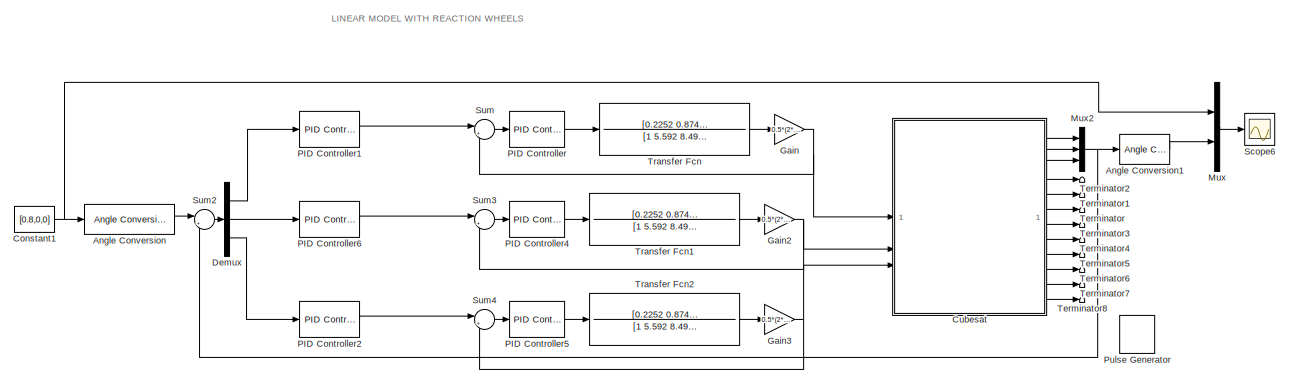
[diagram: root canvas - part 1/2, full width, top band]
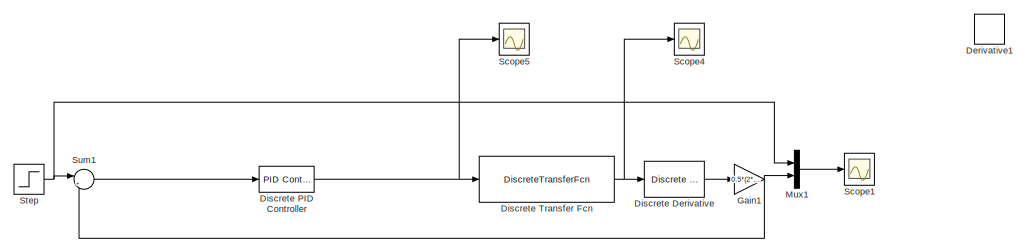
[diagram: root canvas - part 2/2, bottom right region]
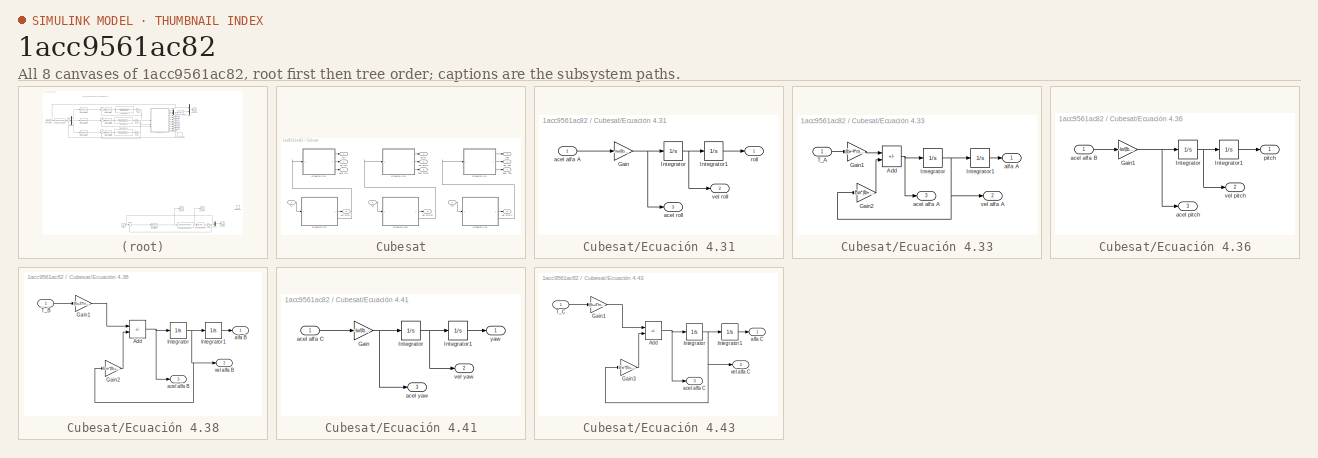
[diagram: thumbnail index - all 8 canvases of the model, root first then tree order]
MODEL slx_1acc9561ac82
KIND model
CONFIG AbsTol = auto
CONFIG EnableMultiTasking = off
CONFIG FixedStep = 0.00005
CONFIG MaxStep = auto
CONFIG MinStep = auto
CONFIG RelTol = 1e-3
CONFIG SampleTimeConstraint = Unconstrained
CONFIG SolverName = FixedStepAuto
CONFIG StartTime = 0.0
CONFIG StopTime = 100
BLOCK [Reference] Angle Conversion  REF=aerolibconvert2/Angle Conversion
  SourceBlock = aerolibconvert2/Angle Conversion
  SourceType = Angle Conversion
BLOCK [Reference] Angle Conversion1  REF=aerolibconvert2/Angle Conversion
  NameLocation = right
  SourceBlock = aerolibconvert2/Angle Conversion
  SourceType = Angle Conversion
BLOCK [Constant] Constant1
  Value = [0.8,0,0]
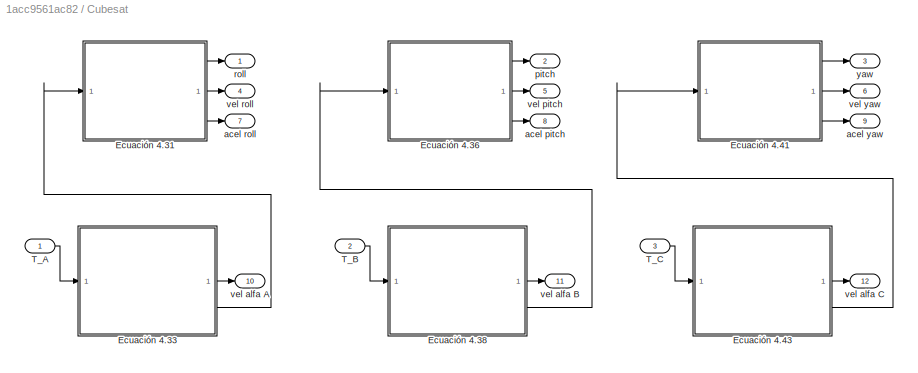
BLOCK [SubSystem] Cubesat
BLOCK [SubSystem] Cubesat/Ecuación 4.31
BLOCK [Gain] Cubesat/Ecuación 4.31/Gain
  Gain = -Iw/(Ib+4*mw*(lw)^2+Iw)
BLOCK [Integrator] Cubesat/Ecuación 4.31/Integrator
BLOCK [Integrator] Cubesat/Ecuación 4.31/Integrator1
BLOCK [Inport] Cubesat/Ecuación 4.31/acel alfa A
BLOCK [Outport] Cubesat/Ecuación 4.31/acel roll
  Port = 3
BLOCK [Outport] Cubesat/Ecuación 4.31/roll
BLOCK [Outport] Cubesat/Ecuación 4.31/vel roll
  Port = 2
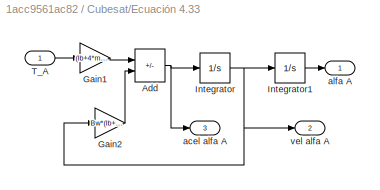
BLOCK [SubSystem] Cubesat/Ecuación 4.33
BLOCK [Sum] Cubesat/Ecuación 4.33/Add
  IconShape = rectangular
  Inputs = +-
BLOCK [Gain] Cubesat/Ecuación 4.33/Gain1
  Gain = (Ib+4*mw*(lw)^2+Iw)/(Iw*(Ib+4*mw*(lw)^2))
BLOCK [Gain] Cubesat/Ecuación 4.33/Gain2
  Gain = Bw*(Ib+4*mw*(lw)^2+Iw)/(Iw*(Ib+4*mw*(lw)^2))
BLOCK [Integrator] Cubesat/Ecuación 4.33/Integrator
BLOCK [Integrator] Cubesat/Ecuación 4.33/Integrator1
BLOCK [Inport] Cubesat/Ecuación 4.33/T_A
BLOCK [Outport] Cubesat/Ecuación 4.33/acel alfa A
  Port = 3
BLOCK [Outport] Cubesat/Ecuación 4.33/alfa A
BLOCK [Outport] Cubesat/Ecuación 4.33/vel alfa A
  Port = 2
BLOCK [SubSystem] Cubesat/Ecuación 4.36
BLOCK [Gain] Cubesat/Ecuación 4.36/Gain1
  Gain = -Iw/(Ib+4*mw*(lw)^2+Iw)
BLOCK [Integrator] Cubesat/Ecuación 4.36/Integrator
BLOCK [Integrator] Cubesat/Ecuación 4.36/Integrator1
BLOCK [Inport] Cubesat/Ecuación 4.36/acel alfa B
BLOCK [Outport] Cubesat/Ecuación 4.36/acel pitch
  Port = 3
BLOCK [Outport] Cubesat/Ecuación 4.36/pitch
BLOCK [Outport] Cubesat/Ecuación 4.36/vel pitch
  Port = 2
BLOCK [SubSystem] Cubesat/Ecuación 4.38
BLOCK [Sum] Cubesat/Ecuación 4.38/Add
  IconShape = rectangular
  Inputs = +-
BLOCK [Gain] Cubesat/Ecuación 4.38/Gain1
  Gain = (Ib+4*mw*(lw)^2+Iw)/(Iw*(Ib+4*mw*(lw)^2))
BLOCK [Gain] Cubesat/Ecuación 4.38/Gain2
  Gain = Bw*(Ib+4*mw*(lw)^2+Iw)/(Iw*(Ib+4*mw*(lw)^2))
BLOCK [Integrator] Cubesat/Ecuación 4.38/Integrator
BLOCK [Integrator] Cubesat/Ecuación 4.38/Integrator1
BLOCK [Inport] Cubesat/Ecuación 4.38/T_B
BLOCK [Outport] Cubesat/Ecuación 4.38/acel alfa B
  Port = 3
BLOCK [Outport] Cubesat/Ecuación 4.38/alfa B
BLOCK [Outport] Cubesat/Ecuación 4.38/vel alfa B
  Port = 2
BLOCK [SubSystem] Cubesat/Ecuación 4.41
BLOCK [Gain] Cubesat/Ecuación 4.41/Gain
  Gain = -Iw/(Ib+4*mw*(lw)^2+Iw)
BLOCK [Integrator] Cubesat/Ecuación 4.41/Integrator
BLOCK [Integrator] Cubesat/Ecuación 4.41/Integrator1
BLOCK [Inport] Cubesat/Ecuación 4.41/acel alfa C
BLOCK [Outport] Cubesat/Ecuación 4.41/acel yaw
  Port = 3
BLOCK [Outport] Cubesat/Ecuación 4.41/vel yaw
  Port = 2
BLOCK [Outport] Cubesat/Ecuación 4.41/yaw
BLOCK [SubSystem] Cubesat/Ecuación 4.43
BLOCK [Sum] Cubesat/Ecuación 4.43/Add
  IconShape = rectangular
  Inputs = +-
BLOCK [Gain] Cubesat/Ecuación 4.43/Gain1
  Gain = (Ib+4*mw*(lw)^2+Iw)/(Iw*(Ib+4*mw*(lw)^2))
BLOCK [Gain] Cubesat/Ecuación 4.43/Gain3
  Gain = Bw*(Ib+4*mw*(lw)^2+Iw)/(Iw*(Ib+4*mw*(lw)^2))
BLOCK [Integrator] Cubesat/Ecuación 4.43/Integrator
BLOCK [Integrator] Cubesat/Ecuación 4.43/Integrator1
BLOCK [Inport] Cubesat/Ecuación 4.43/T_C
BLOCK [Outport] Cubesat/Ecuación 4.43/acel alfa C
  Port = 3
BLOCK [Outport] Cubesat/Ecuación 4.43/alfa C
BLOCK [Outport] Cubesat/Ecuación 4.43/vel alfa C
  Port = 2
BLOCK [Inport] Cubesat/T_A
BLOCK [Inport] Cubesat/T_B
  Port = 2
BLOCK [Inport] Cubesat/T_C
  Port = 3
BLOCK [Outport] Cubesat/acel pitch
  Port = 8
BLOCK [Outport] Cubesat/acel roll
  Port = 7
BLOCK [Outport] Cubesat/acel yaw
  Port = 9
BLOCK [Outport] Cubesat/pitch
  Port = 2
BLOCK [Outport] Cubesat/roll
BLOCK [Outport] Cubesat/vel alfa A
  Port = 10
BLOCK [Outport] Cubesat/vel alfa B
  Port = 11
BLOCK [Outport] Cubesat/vel alfa C
  Port = 12
BLOCK [Outport] Cubesat/vel pitch
  Port = 5
BLOCK [Outport] Cubesat/vel roll
  Port = 4
BLOCK [Outport] Cubesat/vel yaw
  Port = 6
BLOCK [Outport] Cubesat/yaw
  Port = 3
BLOCK [Demux] Demux
  Outputs = 3
BLOCK [Derivative] Derivative1
  Commented = on
BLOCK [Reference] Discrete Derivative  REF=simulink/Discrete/Discrete Derivative
  Commented = on
  SourceBlock = simulink/Discrete/Discrete Derivative
  SourceType = Discrete Derivative
BLOCK [Reference] Discrete PID Controller  REF=slpidlib/PID Controller
  Commented = on
  SourceBlock = slpidlib/PID Controller
  SourceType = PID 1dof
BLOCK [DiscreteTransferFcn] Discrete Transfer Fcn
  Commented = on
  Denominator = [1 -1.128 0.3268]
  InputPortMap = u0
  Numerator = [0.03776 -0.01728]
BLOCK [Gain] Gain
  Gain = 0.5*(2*10^(-2))^2*4.7*10^(-3)
BLOCK [Gain] Gain1
  Commented = on
  Gain = 0.5*(2*10^(-2))^2*2.5*10^(-3)
BLOCK [Gain] Gain2
  Gain = 0.5*(2*10^(-2))^2*4.7*10^(-3)
BLOCK [Gain] Gain3
  Gain = 0.5*(2*10^(-2))^2*4.7*10^(-3)
BLOCK [Mux] Mux
  DisplayOption = bar
  Inputs = 2
BLOCK [Mux] Mux1
  Commented = on
  DisplayOption = bar
  Inputs = 2
BLOCK [Mux] Mux2
  DisplayOption = bar
  Inputs = 3
BLOCK [Reference] PID Controller  REF=slpidlib/PID Controller
  SourceBlock = slpidlib/PID Controller
  SourceType = PID 1dof
BLOCK [Reference] PID Controller1  REF=slpidlib/PID Controller
  SourceBlock = slpidlib/PID Controller
  SourceType = PID 1dof
BLOCK [Reference] PID Controller2  REF=slpidlib/PID Controller
  SourceBlock = slpidlib/PID Controller
  SourceType = PID 1dof
BLOCK [Reference] PID Controller4  REF=slpidlib/PID Controller
  SourceBlock = slpidlib/PID Controller
  SourceType = PID 1dof
BLOCK [Reference] PID Controller5  REF=slpidlib/PID Controller
  SourceBlock = slpidlib/PID Controller
  SourceType = PID 1dof
BLOCK [Reference] PID Controller6  REF=slpidlib/PID Controller
  SourceBlock = slpidlib/PID Controller
  SourceType = PID 1dof
BLOCK [DiscretePulseGenerator] Pulse Generator
  Amplitude = 1*10^(-4)
  Commented = on
  Period = 7
  PulseType = Time based
  PulseWidth = 50
BLOCK [Scope] Scope1
  Commented = on
  Floating = off
  NumInputPorts = 1
  ScopeSpecificationString = Simulink.scopes.TimeScopeBlockCfg('CurrentConfiguration', extmgr.ConfigurationSet(extmgr.Configuration('Core','General UI',true),extmgr.Configuration('Core','Source UI',true),extmgr.Configuration('Sources','WiredSimulink',true,'DataLoggingVariableName','ScopeData1'),extmgr.Configuration('Visuals','Time Domain',true,'SerializedDisplays',{struct('MinYLimReal','-0.00001','MaxYLimReal','0.00011','YLab...<+1686ch>
BLOCK [Scope] Scope4
  Commented = on
  Floating = off
  NumInputPorts = 1
  ScopeSpecificationString = Simulink.scopes.TimeScopeBlockCfg('CurrentConfiguration', extmgr.ConfigurationSet(extmgr.Configuration('Core','General UI',true),extmgr.Configuration('Core','Source UI',true),extmgr.Configuration('Sources','WiredSimulink',true,'DataLoggingVariableName','ScopeData4'),extmgr.Configuration('Visuals','Time Domain',true,'SerializedDisplays',{struct('MinYLimReal','-64.37401','MaxYLimReal','579.36609','Y...<+1396ch>
BLOCK [Scope] Scope5
  Commented = on
  Floating = off
  NumInputPorts = 1
  ScopeSpecificationString = Simulink.scopes.TimeScopeBlockCfg('CurrentConfiguration', extmgr.ConfigurationSet(extmgr.Configuration('Core','General UI',true),extmgr.Configuration('Core','Source UI',true),extmgr.Configuration('Sources','WiredSimulink',true,'DataLoggingVariableName','ScopeData5'),extmgr.Configuration('Visuals','Time Domain',true,'SerializedDisplays',{struct('MinYLimReal','-624.875','MaxYLimReal','5623.875','YLa...<+1392ch>
BLOCK [Scope] Scope6
  Floating = off
  NumInputPorts = 1
  ScopeSpecificationString = Simulink.scopes.TimeScopeBlockCfg('CurrentConfiguration', extmgr.ConfigurationSet(extmgr.Configuration('Core','General UI',true),extmgr.Configuration('Core','Source UI',true),extmgr.Configuration('Sources','WiredSimulink',true,'DataLogging',true,'DataLoggingVariableName','ScopeData1'),extmgr.Configuration('Visuals','Time Domain',true,'SerializedDisplays',{struct('MinYLimReal','-0.10279','MaxYLimRe...<+2002ch>
BLOCK [Step] Step
  After = 1*10^(-4)
  Commented = on
  SampleTime = 0
BLOCK [Sum] Sum
  Inputs = |+-
BLOCK [Sum] Sum1
  Commented = on
  Inputs = |+-
BLOCK [Sum] Sum2
  Inputs = |+-
BLOCK [Sum] Sum3
  Inputs = |+-
BLOCK [Sum] Sum4
  Inputs = |+-
BLOCK [Terminator] Terminator
BLOCK [Terminator] Terminator1
BLOCK [Terminator] Terminator2
BLOCK [Terminator] Terminator3
BLOCK [Terminator] Terminator4
BLOCK [Terminator] Terminator5
BLOCK [Terminator] Terminator6
BLOCK [Terminator] Terminator7
BLOCK [Terminator] Terminator8
BLOCK [TransferFcn] Transfer Fcn
  Denominator = [1 5.592 8.492]
  Numerator = [0.2252 0.8748 0]
BLOCK [TransferFcn] Transfer Fcn1
  Denominator = [1 5.592 8.492]
  Numerator = [0.2252 0.8748 0]
BLOCK [TransferFcn] Transfer Fcn2
  Denominator = [1 5.592 8.492]
  Numerator = [0.2252 0.8748 0]
ANNOTATION (root): LINEAR MODEL WITH REACTION WHEELS
LINE Angle Conversion1:1 -> Mux:2
LINE Angle Conversion:1 -> Sum2:1
NET Constant1:1 -> Angle Conversion:1, Mux:1
NET Cubesat/Ecuación 4.31/Gain:1 -> Cubesat/Ecuación 4.31/Integrator:1, Cubesat/Ecuación 4.31/acel roll:1
LINE Cubesat/Ecuación 4.31/Integrator1:1 -> Cubesat/Ecuación 4.31/roll:1
NET Cubesat/Ecuación 4.31/Integrator:1 -> Cubesat/Ecuación 4.31/Integrator1:1, Cubesat/Ecuación 4.31/vel roll:1
LINE Cubesat/Ecuación 4.31/acel alfa A:1 -> Cubesat/Ecuación 4.31/Gain:1
LINE Cubesat/Ecuación 4.31:1 -> Cubesat/roll:1
LINE Cubesat/Ecuación 4.31:2 -> Cubesat/vel roll:1
LINE Cubesat/Ecuación 4.31:3 -> Cubesat/acel roll:1
NET Cubesat/Ecuación 4.33/Add:1 -> Cubesat/Ecuación 4.33/Integrator:1, Cubesat/Ecuación 4.33/acel alfa A:1
LINE Cubesat/Ecuación 4.33/Gain1:1 -> Cubesat/Ecuación 4.33/Add:1
LINE Cubesat/Ecuación 4.33/Gain2:1 -> Cubesat/Ecuación 4.33/Add:2
LINE Cubesat/Ecuación 4.33/Integrator1:1 -> Cubesat/Ecuación 4.33/alfa A:1
NET Cubesat/Ecuación 4.33/Integrator:1 -> Cubesat/Ecuación 4.33/Gain2:1, Cubesat/Ecuación 4.33/Integrator1:1, Cubesat/Ecuación 4.33/vel alfa A:1
LINE Cubesat/Ecuación 4.33/T_A:1 -> Cubesat/Ecuación 4.33/Gain1:1
LINE Cubesat/Ecuación 4.33:2 -> Cubesat/vel alfa A:1
LINE Cubesat/Ecuación 4.33:3 -> Cubesat/Ecuación 4.31:1
NET Cubesat/Ecuación 4.36/Gain1:1 -> Cubesat/Ecuación 4.36/Integrator:1, Cubesat/Ecuación 4.36/acel pitch:1
LINE Cubesat/Ecuación 4.36/Integrator1:1 -> Cubesat/Ecuación 4.36/pitch:1
NET Cubesat/Ecuación 4.36/Integrator:1 -> Cubesat/Ecuación 4.36/Integrator1:1, Cubesat/Ecuación 4.36/vel pitch:1
LINE Cubesat/Ecuación 4.36/acel alfa B:1 -> Cubesat/Ecuación 4.36/Gain1:1
LINE Cubesat/Ecuación 4.36:1 -> Cubesat/pitch:1
LINE Cubesat/Ecuación 4.36:2 -> Cubesat/vel pitch:1
LINE Cubesat/Ecuación 4.36:3 -> Cubesat/acel pitch:1
NET Cubesat/Ecuación 4.38/Add:1 -> Cubesat/Ecuación 4.38/Integrator:1, Cubesat/Ecuación 4.38/acel alfa B:1
LINE Cubesat/Ecuación 4.38/Gain1:1 -> Cubesat/Ecuación 4.38/Add:1
LINE Cubesat/Ecuación 4.38/Gain2:1 -> Cubesat/Ecuación 4.38/Add:2
LINE Cubesat/Ecuación 4.38/Integrator1:1 -> Cubesat/Ecuación 4.38/alfa B:1
NET Cubesat/Ecuación 4.38/Integrator:1 -> Cubesat/Ecuación 4.38/Gain2:1, Cubesat/Ecuación 4.38/Integrator1:1, Cubesat/Ecuación 4.38/vel alfa B:1
LINE Cubesat/Ecuación 4.38/T_B:1 -> Cubesat/Ecuación 4.38/Gain1:1
LINE Cubesat/Ecuación 4.38:2 -> Cubesat/vel alfa B:1
LINE Cubesat/Ecuación 4.38:3 -> Cubesat/Ecuación 4.36:1
NET Cubesat/Ecuación 4.41/Gain:1 -> Cubesat/Ecuación 4.41/Integrator:1, Cubesat/Ecuación 4.41/acel yaw:1
LINE Cubesat/Ecuación 4.41/Integrator1:1 -> Cubesat/Ecuación 4.41/yaw:1
NET Cubesat/Ecuación 4.41/Integrator:1 -> Cubesat/Ecuación 4.41/Integrator1:1, Cubesat/Ecuación 4.41/vel yaw:1
LINE Cubesat/Ecuación 4.41/acel alfa C:1 -> Cubesat/Ecuación 4.41/Gain:1
LINE Cubesat/Ecuación 4.41:1 -> Cubesat/yaw:1
LINE Cubesat/Ecuación 4.41:2 -> Cubesat/vel yaw:1
LINE Cubesat/Ecuación 4.41:3 -> Cubesat/acel yaw:1
NET Cubesat/Ecuación 4.43/Add:1 -> Cubesat/Ecuación 4.43/Integrator:1, Cubesat/Ecuación 4.43/acel alfa C:1
LINE Cubesat/Ecuación 4.43/Gain1:1 -> Cubesat/Ecuación 4.43/Add:1
LINE Cubesat/Ecuación 4.43/Gain3:1 -> Cubesat/Ecuación 4.43/Add:2
LINE Cubesat/Ecuación 4.43/Integrator1:1 -> Cubesat/Ecuación 4.43/alfa C:1
NET Cubesat/Ecuación 4.43/Integrator:1 -> Cubesat/Ecuación 4.43/Gain3:1, Cubesat/Ecuación 4.43/Integrator1:1, Cubesat/Ecuación 4.43/vel alfa C:1
LINE Cubesat/Ecuación 4.43/T_C:1 -> Cubesat/Ecuación 4.43/Gain1:1
LINE Cubesat/Ecuación 4.43:2 -> Cubesat/vel alfa C:1
LINE Cubesat/Ecuación 4.43:3 -> Cubesat/Ecuación 4.41:1
LINE Cubesat/T_A:1 -> Cubesat/Ecuación 4.33:1
LINE Cubesat/T_B:1 -> Cubesat/Ecuación 4.38:1
LINE Cubesat/T_C:1 -> Cubesat/Ecuación 4.43:1
LINE Cubesat:1 -> Mux2:1
LINE Cubesat:10 -> Terminator6:1
LINE Cubesat:11 -> Terminator7:1
LINE Cubesat:12 -> Terminator8:1
LINE Cubesat:2 -> Mux2:2
LINE Cubesat:3 -> Mux2:3
LINE Cubesat:4 -> Terminator2:1
LINE Cubesat:5 -> Terminator1:1
LINE Cubesat:6 -> Terminator:1
LINE Cubesat:7 -> Terminator3:1
LINE Cubesat:8 -> Terminator4:1
LINE Cubesat:9 -> Terminator5:1
LINE Demux:1 -> PID Controller1:1
LINE Demux:2 -> PID Controller6:1
LINE Demux:3 -> PID Controller2:1
LINE Discrete Derivative:1 -> Gain1:1
NET Discrete PID Controller:1 -> Discrete Transfer Fcn:1, Scope5:1
NET Discrete Transfer Fcn:1 -> Discrete Derivative:1, Scope4:1
NET Gain1:1 -> Mux1:2, Sum1:2
NET Gain2:1 -> Cubesat:2, Sum3:2
NET Gain3:1 -> Cubesat:3, Sum4:2
NET Gain:1 -> Cubesat:1, Sum:2
LINE Mux1:1 -> Scope1:1
NET Mux2:1 -> Angle Conversion1:1, Sum2:2
LINE Mux:1 -> Scope6:1
LINE PID Controller1:1 -> Sum:1
LINE PID Controller2:1 -> Sum4:1
LINE PID Controller4:1 -> Transfer Fcn1:1
LINE PID Controller5:1 -> Transfer Fcn2:1
LINE PID Controller6:1 -> Sum3:1
LINE PID Controller:1 -> Transfer Fcn:1
NET Step:1 -> Mux1:1, Sum1:1
LINE Sum1:1 -> Discrete PID Controller:1
LINE Sum2:1 -> Demux:1
LINE Sum3:1 -> PID Controller4:1
LINE Sum4:1 -> PID Controller5:1
LINE Sum:1 -> PID Controller:1
LINE Transfer Fcn1:1 -> Gain2:1
LINE Transfer Fcn2:1 -> Gain3:1
LINE Transfer Fcn:1 -> Gain:1
note: NET lines group one-source signal fan-out (src -> all destinations, sorted); 1:1 wires keep LINE
